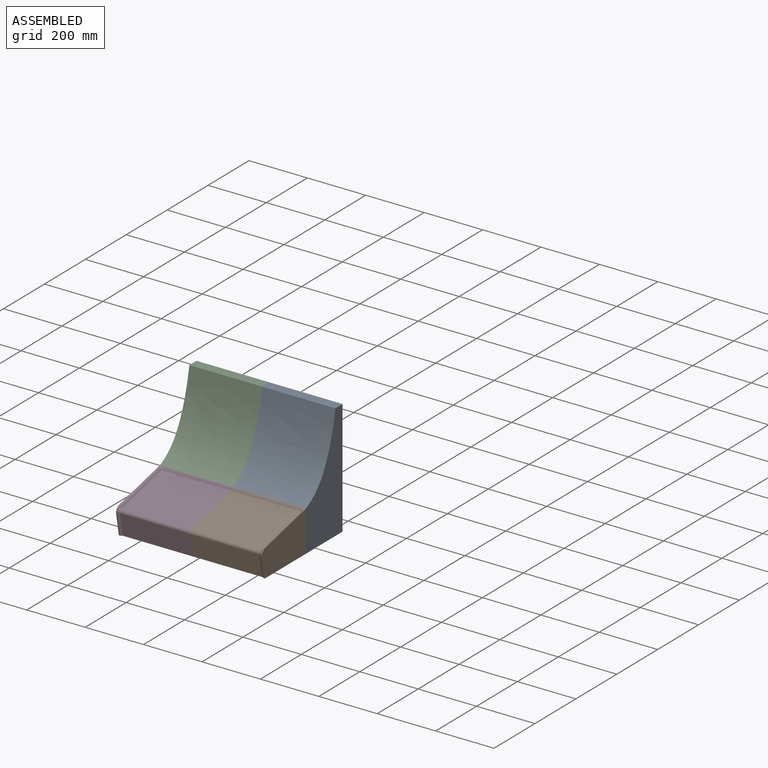
[diagram: assembled view]
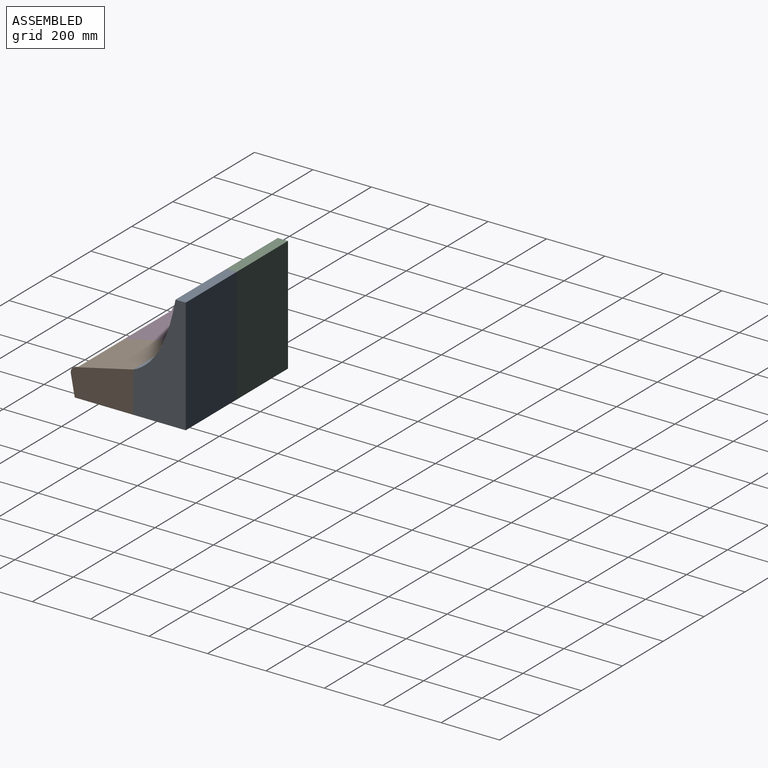
[diagram: assembled view, second angle]
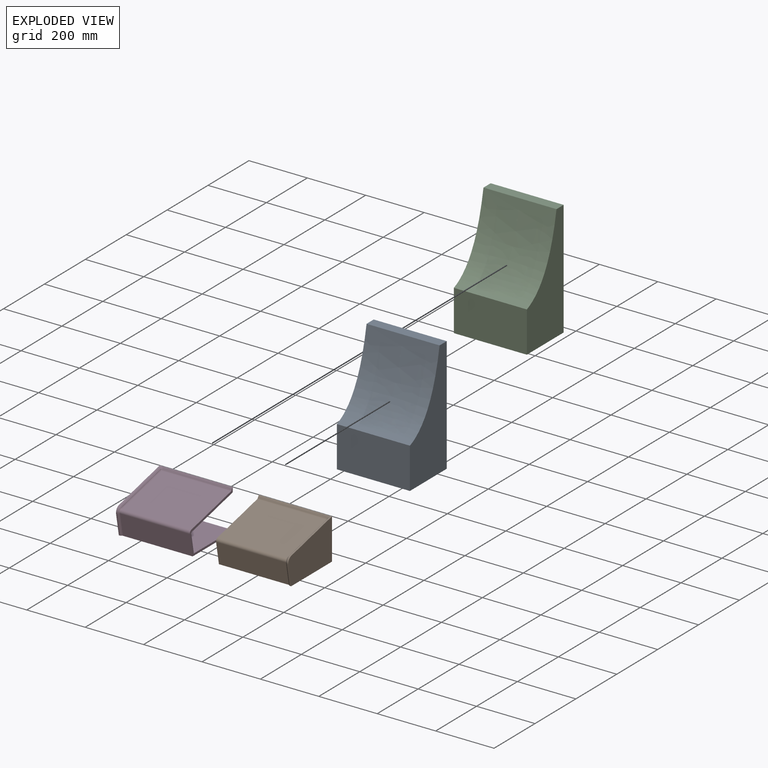
[diagram: exploded view]
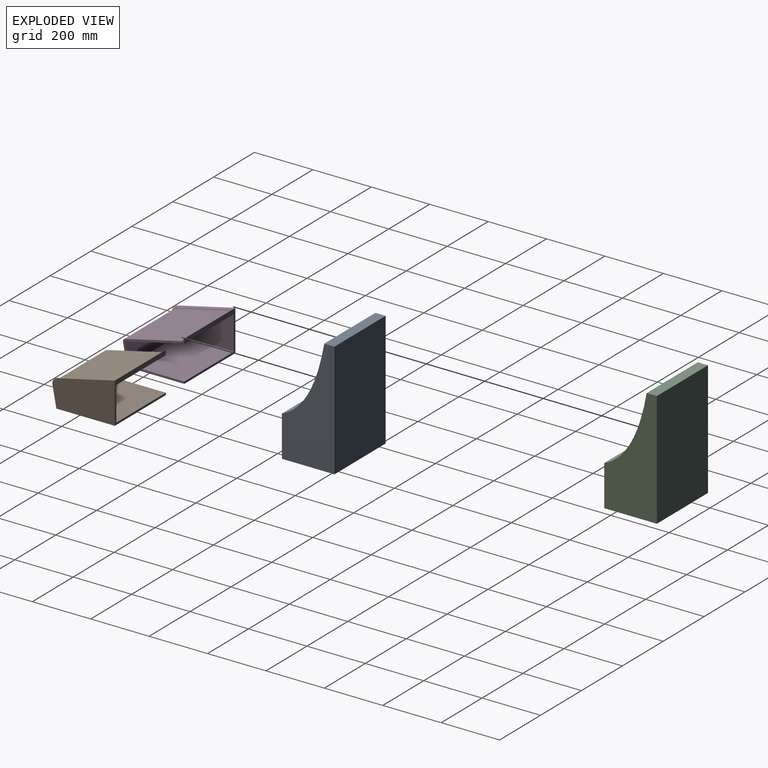
[diagram: exploded view, second angle]
ASSEMBLY  parts=4 mates=3
PART A: 7 faces, bbox 250x180x395 mm
  f0: plane 250x140mm, normal (0,-1,0), area 35000mm2, adj f1,f4,f5,f6
  f1: plane 250x180mm, normal (0,0,-1), area 45000mm2, adj f0,f2,f5,f6
  f2: plane 395x250mm, normal (0,1,0), area 98750mm2, adj f1,f3,f5,f6
  f3: plane 250x35mm, normal (0,0,1), area 8750mm2, adj f2,f4,f5,f6
  f4: extruded ~255x250mm, area 76414.6mm2, adj f0,f3,f5,f6
  f5: plane 395x180mm, normal (1,0,0), area 45571.6mm2, adj f0,f1,f2,f3,f4
  f6: plane 395x180mm, normal (-1,0,0), area 45571.6mm2, adj f0,f1,f2,f3,f4
PART B: 27 faces, bbox 266.5x226.8x148 mm
  f0: plane 71.11x13.43mm, normal (0,-0.98,-0.19), area 325.7mm2, adj f1,f6,f9,f16
  f1: plane 251.43x201.43mm, normal (0,0,-1), area 49012.9mm2, adj f0,f2,f4,f6,f7,f16,f23
  f2: plane 211.94x141.9mm, normal (-1,0,0), area 3617.1mm2, adj f1,f3,f4,f7,f8,f10,f11,f13
  f3: plane 237.56x193.3mm, normal (0,-0.22,0.97), area 46946.7mm2, adj f2,f8,f19,f20,f26
  f4: plane 250.51x140.51mm, normal (0,1,0), area 6777.4mm2, adj f1,f2,f5,f6,f10,f11,f12,f15
  f5: plane 198.27x45.68mm, normal (0,-0.22,0.97), area 915.6mm2, adj f4,f6,f9,f18
  f6: plane 213.78x140mm, normal (1,0,0), area 24111.8mm2, adj f0,f1,f4,f5,f9
  f7: plane 239.19x73.59mm, normal (0,-0.98,-0.19), area 17907.7mm2, adj f1,f2,f8,f22,f23
  f8: cylinder r=10mm len=239.19mm, axis (1,0,0), area 3647.3mm2, adj f2,f3,f7,f21
  f9: cylinder r=20mm len=23.2mm, axis (1,0,0), area 137.8mm2, adj f0,f5,f6,f17
  f10: plane 242x190.13mm, normal (0,0,1), area 46010.9mm2, adj f2,f4,f12,f13
  f11: plane 242x198.42mm, normal (0,0.22,-0.97), area 49276.8mm2, adj f2,f4,f12,f14
  f12: plane 202.56x116.58mm, normal (-1,0,0), area 18474.9mm2, adj f4,f10,f11,f13,f14
  f13: plane 242x65.8mm, normal (0,0.98,0.19), area 16206.1mm2, adj f2,f10,f12,f14
  f14: cylinder r=5.33mm len=242mm, axis (-1,0,0), area 1701.1mm2, adj f2,f11,f12,f13
  f15: bspline ~264.55x11.99mm, area 2330.7mm2, adj f2,f4,f24,f26
  f16: bspline ~75.6x19.02mm, area 344.5mm2, adj f0,f1,f17,f23
  f17: bspline ~23.2x16.59mm, area 160.4mm2, adj f9,f16,f18,f20,f21,f22
  f18: bspline ~209.31x52.84mm, area 1414.8mm2, adj f4,f5,f17,f19,f24
  f19: bspline ~202.44x49.56mm, area 927.7mm2, adj f3,f18,f20,f25
  f20: bspline ~5.91x4.41mm, area 25.7mm2, adj f3,f17,f19,f21
  f21: bspline ~14.47x9.2mm, area 53.9mm2, adj f8,f17,f20,f22
  f22: bspline ~2.71x1.96mm, area 4.9mm2, adj f7,f17,f21,f23
  f23: bspline ~75.68x15.45mm, area 214.9mm2, adj f1,f7,f16,f22
  f24: bspline ~11.39x9.9mm, area 60.8mm2, adj f4,f15,f18,f25
  f25: bspline ~5.08x4.68mm, area 8.7mm2, adj f19,f24,f26
  f26: bspline ~248.87x3.37mm, area 1053.4mm2, adj f2,f3,f15,f25
PART C: same geometry as A
PART D: 28 faces, bbox 266.5x227x146.9 mm
  f0: plane 70.3x13.28mm, normal (0,-0.98,-0.19), area 321.9mm2, adj f4,f5,f8,f17
  f1: plane 250.53x199.7mm, normal (0,0,-1), area 49006.8mm2, adj f2,f5,f7,f8,f9,f17,f24
  f2: plane 211.95x141.9mm, normal (1,0,0), area 3615.2mm2, adj f1,f3,f7,f9,f10,f11,f12,f14
  f3: plane 237.55x193.3mm, normal (0,-0.22,0.97), area 46946.5mm2, adj f2,f10,f20,f21,f27
  f4: cylinder r=20mm len=23.2mm, axis (1,0,0), area 137.8mm2, adj f0,f6,f8,f18
  f5: cylinder r=1mm len=6.15mm, axis (-1,0,0), area 7.4mm2, adj f0,f1,f8,f17
  f6: plane 198.27x45.68mm, normal (0,-0.22,0.97), area 915.6mm2, adj f4,f7,f8,f19
  f7: plane 250.51x140.51mm, normal (0,1,0), area 6777.4mm2, adj f1,f2,f6,f8,f11,f12,f13,f16
  f8: plane 213.78x140mm, normal (-1,0,0), area 24111.7mm2, adj f0,f1,f4,f5,f6,f7
  f9: plane 239.19x73.59mm, normal (0,-0.98,-0.19), area 17907.7mm2, adj f1,f2,f10,f23,f24
  f10: cylinder r=10mm len=239.19mm, axis (1,0,0), area 3647.3mm2, adj f2,f3,f9,f22
  f11: plane 242x198.42mm, normal (0,0.22,-0.97), area 49276.8mm2, adj f2,f7,f13,f14
  f12: plane 242x190.13mm, normal (0,0,1), area 46010.9mm2, adj f2,f7,f13,f15
  f13: plane 202.63x116.58mm, normal (1,0,0), area 18476.9mm2, adj f7,f11,f12,f14,f15
  f14: cylinder r=4.27mm len=242mm, axis (1,0,0), area 1800.1mm2, adj f2,f11,f13,f15
  f15: plane 242x65.8mm, normal (0,0.98,0.19), area 16206.1mm2, adj f2,f12,f13,f14
  f16: bspline ~264.55x11.99mm, area 2330.7mm2, adj f2,f7,f25,f27
  f17: bspline ~74.74x18.86mm, area 343.5mm2, adj f0,f1,f5,f18,f24
  f18: bspline ~24.37x16.9mm, area 160.4mm2, adj f4,f17,f19,f21,f22,f23
  f19: bspline ~209.31x52.84mm, area 1414.8mm2, adj f6,f7,f18,f20,f25
  f20: bspline ~202.44x49.56mm, area 927.7mm2, adj f3,f19,f21,f26
  f21: bspline ~5.91x4.41mm, area 25.6mm2, adj f3,f18,f20,f22
  f22: bspline ~14.47x9.21mm, area 53.9mm2, adj f10,f18,f21,f23
  f23: bspline ~2.71x1.96mm, area 4.9mm2, adj f9,f18,f22,f24
  f24: bspline ~72.08x14.77mm, area 214.9mm2, adj f1,f9,f17,f23
  f25: bspline ~11.39x9.9mm, area 60.8mm2, adj f7,f16,f19,f26
  f26: bspline ~5.08x4.68mm, area 9.3mm2, adj f20,f25,f27
  f27: bspline ~248.87x3.37mm, area 1053.4mm2, adj f2,f3,f16,f26
PLACE A t=(-208.68,-65.94,-56.6)mm
PLACE B t=(-208.68,-65.94,-56.6)mm
PLACE C t=(-458.68,-65.94,-56.6)mm
PLACE D t=(-458.68,-65.94,-56.6)mm
MATE fastened B.f2 <-> D.f2  axis (-1,0,0) through (-208.68,-65.94,66.98)mm
MATE fastened A.f0 <-> B.f4  axis (0,-1,0) through (41.32,-65.94,83.4)mm
MATE fastened C.f0 <-> D.f7  axis (0,-1,0) through (-458.68,-65.94,83.4)mm
